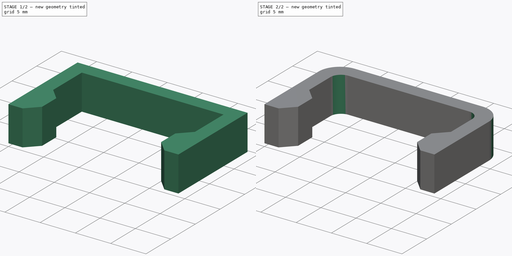
[diagram: build sequence overview — one tinted view per stage of 2, left to right]
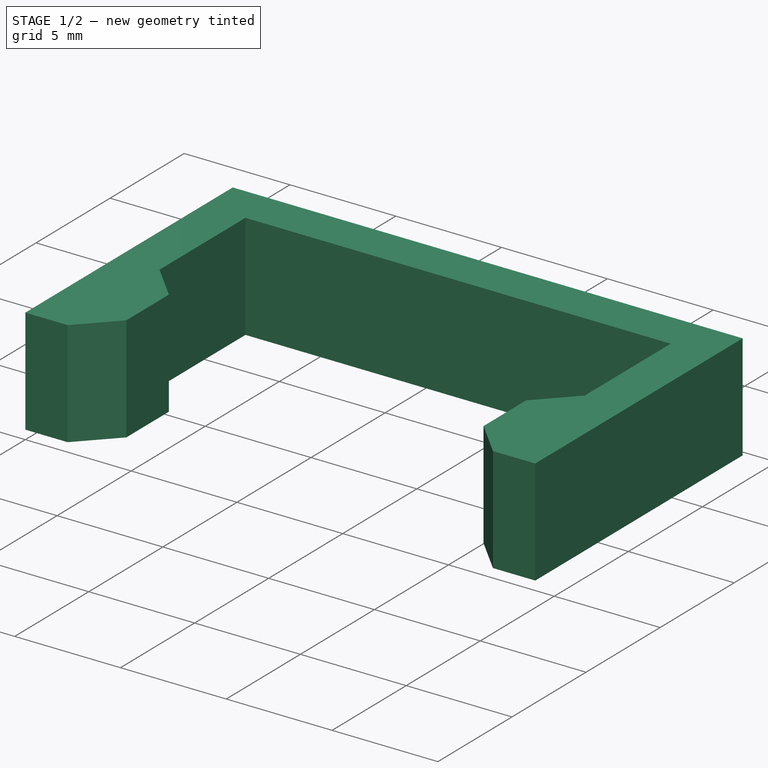
[diagram: stage 1 of 2 — iso view after this stage's code; geometry added in this stage tinted green]
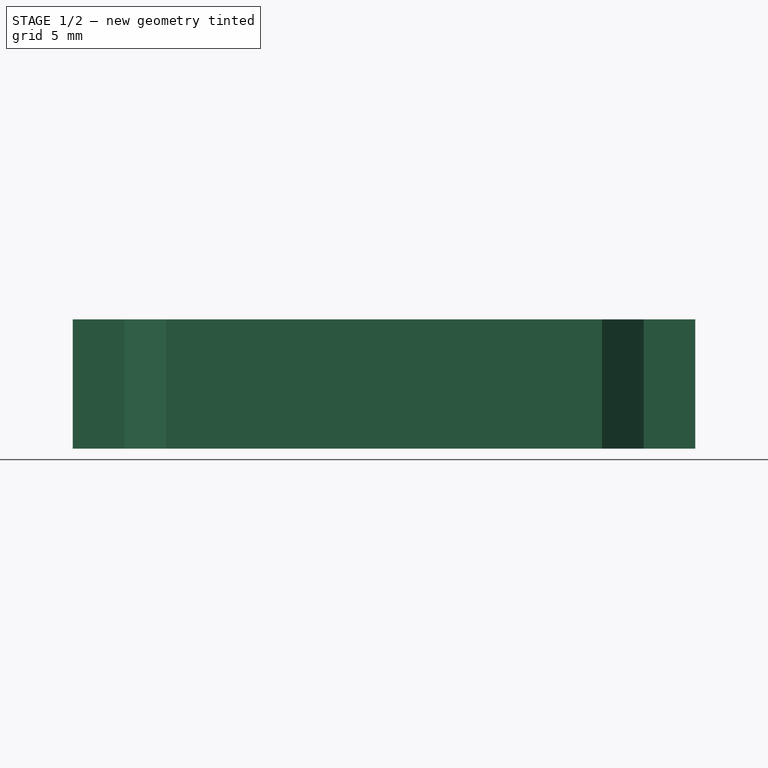
[diagram: stage 1 of 2 — front view after this stage's code; geometry added in this stage tinted green]
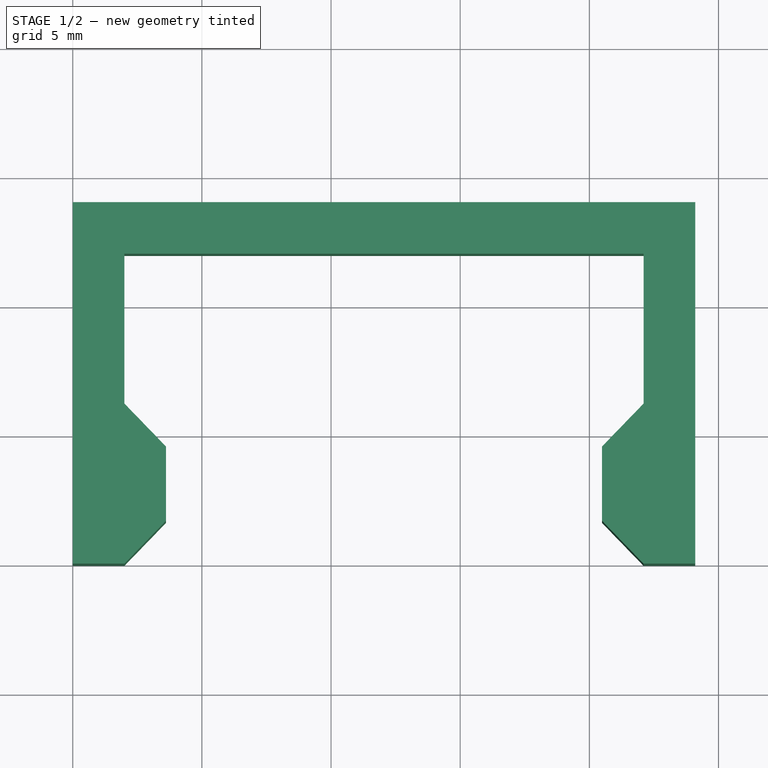
[diagram: stage 1 of 2 — top view after this stage's code; geometry added in this stage tinted green]
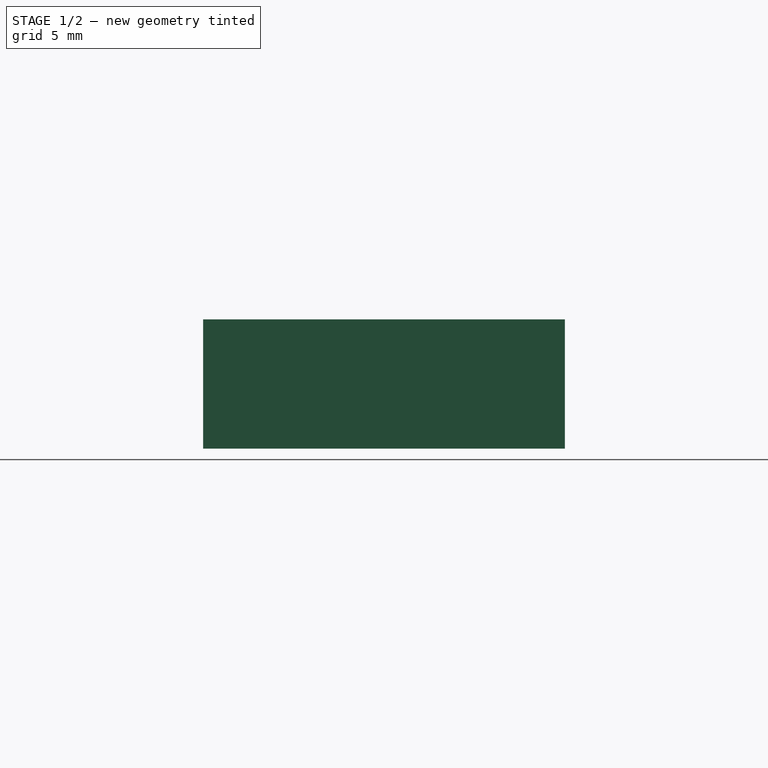
[diagram: stage 1 of 2 — right view after this stage's code; geometry added in this stage tinted green]
FCSTD DOCUMENT  (FreeCAD 0.16R6707 (Git))
Label: 2020_snap_cover
License: All rights reserved
LicenseURL: http://en.wikipedia.org/wiki/All_rights_reserved
objects: PartDesign::Fillet×2, Sketcher::SketchObject×1, PartDesign::Pad×1, PartDesign::Chamfer×1
note: 6 computed .brp shape members not serialized (recipe doc carries the construction recipe); baked Part::Feature solids carry a one-line shape summary decoded from their .brp

FEATURE [Sketcher::SketchObject] Sketch
  sketch-geometry (12):
    g0: LineSegment StartX=0 StartY=0 StartZ=0 EndX=0 EndY=14 EndZ=0
    g1: LineSegment StartX=0 StartY=14 StartZ=0 EndX=24.1 EndY=14 EndZ=0
    g2: LineSegment StartX=24.1 StartY=14 StartZ=0 EndX=24.1 EndY=0 EndZ=0
    g3: LineSegment StartX=22.1 StartY=6.2 StartZ=0 EndX=22.1 EndY=12 EndZ=0
    g4: LineSegment StartX=22.1 StartY=12 StartZ=0 EndX=2 EndY=12 EndZ=0
    g5: LineSegment StartX=2 StartY=12 StartZ=0 EndX=2 EndY=6.2 EndZ=0
    g6: LineSegment StartX=0 StartY=0 StartZ=0 EndX=2 EndY=0 EndZ=0
    g7: LineSegment StartX=2 StartY=0 StartZ=0 EndX=5 EndY=3.1 EndZ=0
    g8: LineSegment StartX=5 StartY=3.1 StartZ=0 EndX=2 EndY=6.2 EndZ=0
    g9: LineSegment StartX=22.1 StartY=6.2 StartZ=0 EndX=19.1 EndY=3.1 EndZ=0
    g10: LineSegment StartX=19.1 StartY=3.1 StartZ=0 EndX=22.1 EndY=0 EndZ=0
    g11: LineSegment StartX=22.1 StartY=0 StartZ=0 EndX=24.1 EndY=0 EndZ=0
  constraints (35):
    c: PointOnObject(g0,g-2)
    c: Coincident(g0,g1)
    c: Horizontal(g1)
    c: Coincident(g1,g2)
    c: Vertical(g2)
    c: Vertical(g3)
    c: Coincident(g3,g4)
    c: Horizontal(g4)
    c: Coincident(g4,g5)
    c: Vertical(g5)
    c: Equal(g5,g3)
    c: Equal(g0,g2)
    c: DistanceX(g4,g4) = 20.1
    c: DistanceY(g3,g3) = 5.8
    c: DistanceX(g3,g2) = 2
    c: DistanceY(g3,g1) = 2
    c: DistanceX(g0,g4) = 2
    c: Coincident(g-1,g6)
    c: PointOnObject(g6,g-1)
    c: Coincident(g6,g7)
    c: Coincident(g7,g8)
    c: Coincident(g8,g5)
    c: Coincident(g3,g9)
    c: Coincident(g9,g10)
    c: PointOnObject(g10,g-1)
    c: Coincident(g10,g11)
    c: Coincident(g11,g2)
    c: Equal(g6,g11)
    c: Equal(g8,g9)
    c: Equal(g9,g7)
    c: Equal(g7,g10)
    c: DistanceY(g10,g3) = 6.2
    c: DistanceX(g0,g7) = 5
    c: Coincident(g0,g6)
    c: DistanceX(g5,g6) = 0
FEATURE [PartDesign::Pad] Pad
  Length = 5
  Length2 = 100
  Sketch = -> Sketch
  Type = 0
FEATURE [PartDesign::Chamfer] Chamfer
  Base = -> Pad [Edge32,Edge17]
  Size = 2
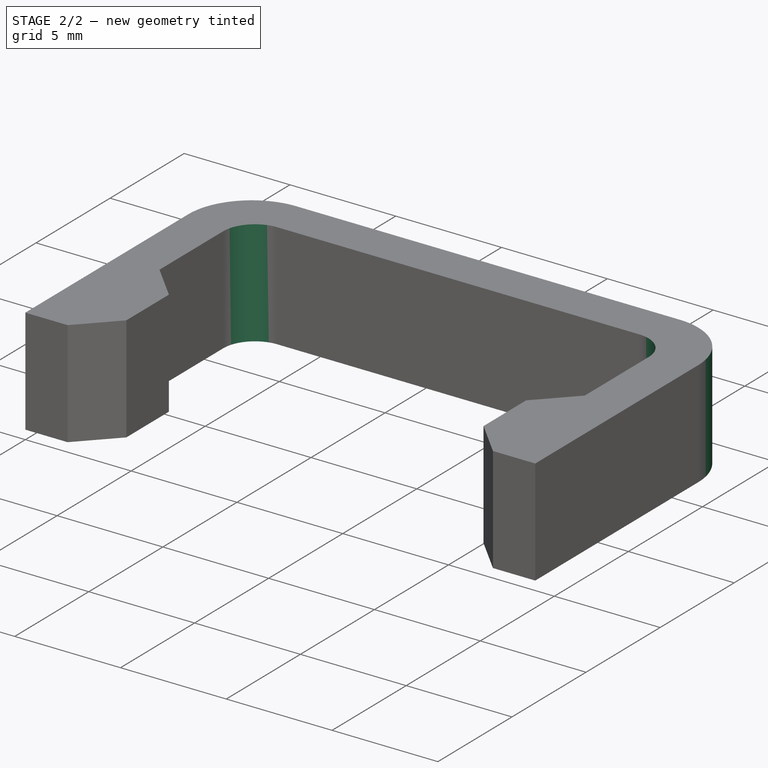
[diagram: stage 2 of 2 — iso view after this stage's code; geometry added in this stage tinted green]
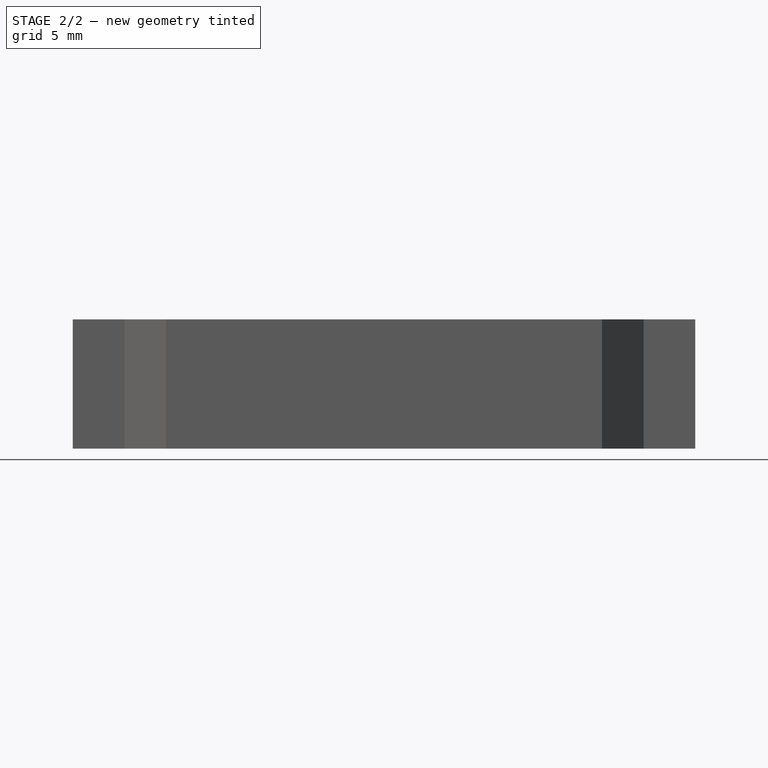
[diagram: stage 2 of 2 — front view after this stage's code; geometry added in this stage tinted green]
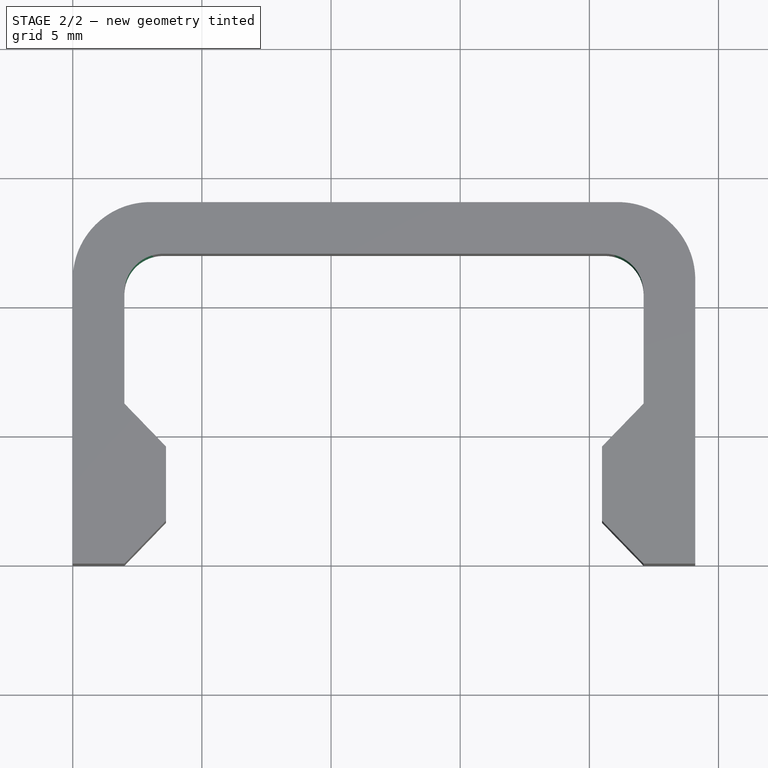
[diagram: stage 2 of 2 — top view after this stage's code; geometry added in this stage tinted green]
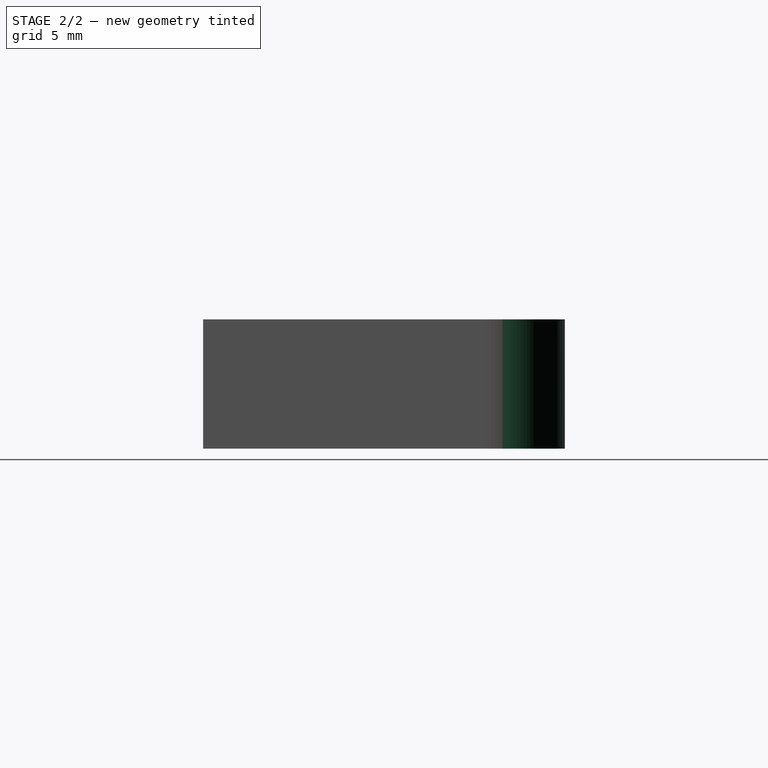
[diagram: stage 2 of 2 — right view after this stage's code; geometry added in this stage tinted green]
FEATURE [PartDesign::Fillet] Fillet
  Base = -> Chamfer [Edge37,Edge35]
  Radius = 1.5
FEATURE [PartDesign::Fillet] Fillet001
  Base = -> Fillet [Edge42,Edge38]
  Radius = 3
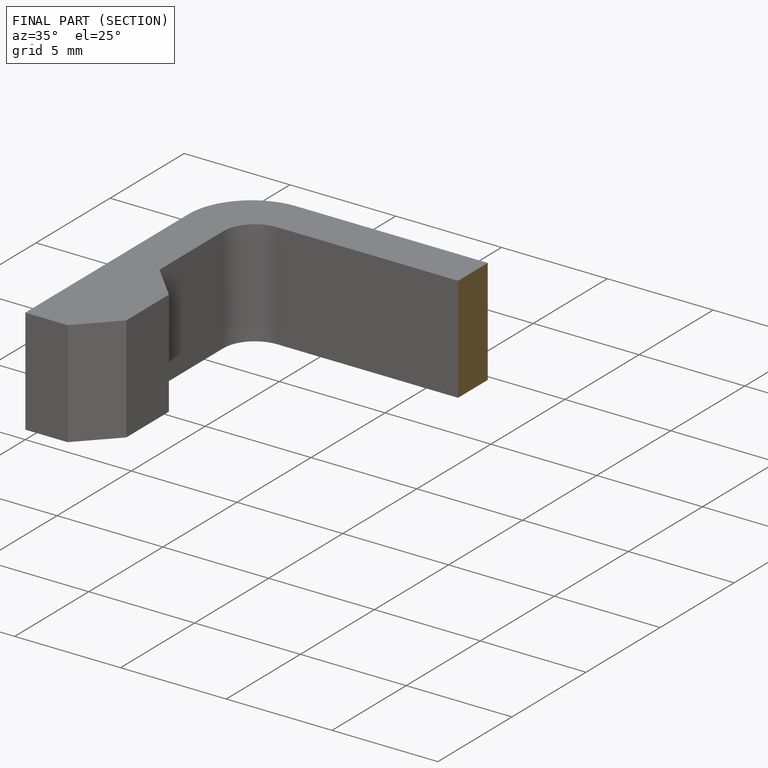
[diagram: finished part — half-section view (interior)]
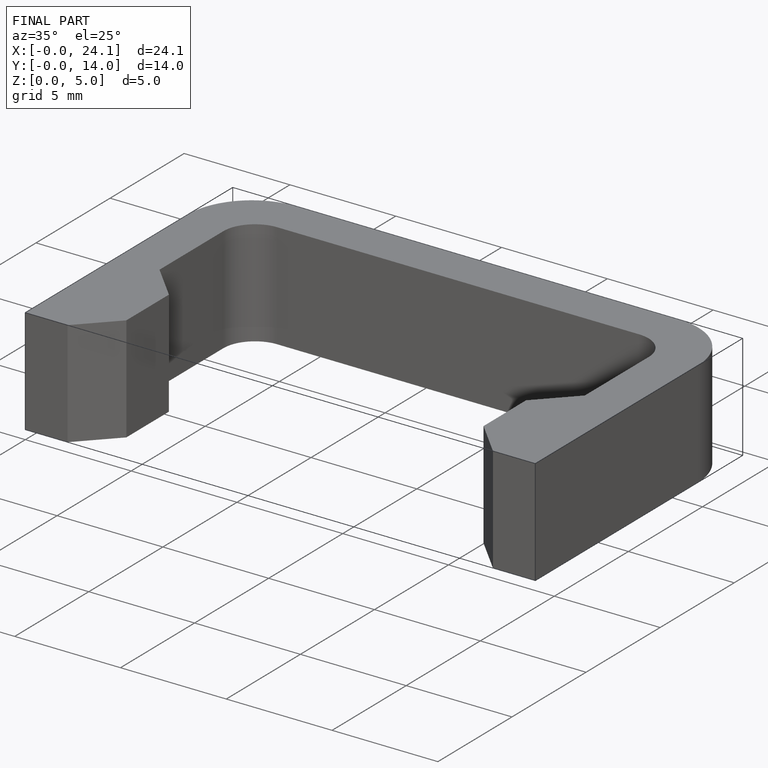
[diagram: finished part — iso view with bounding-box wireframe]
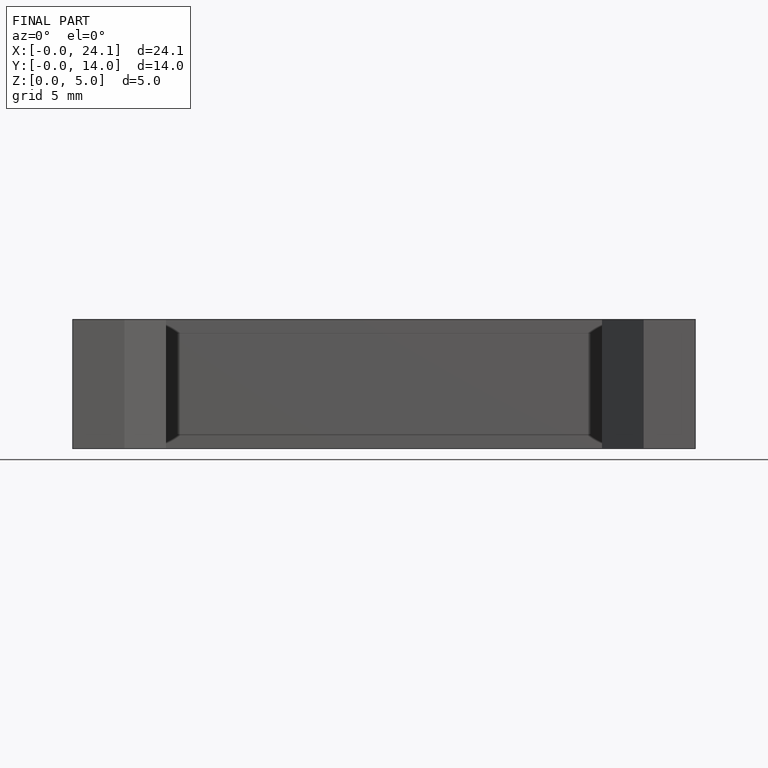
[diagram: finished part — front view with bounding-box wireframe]
